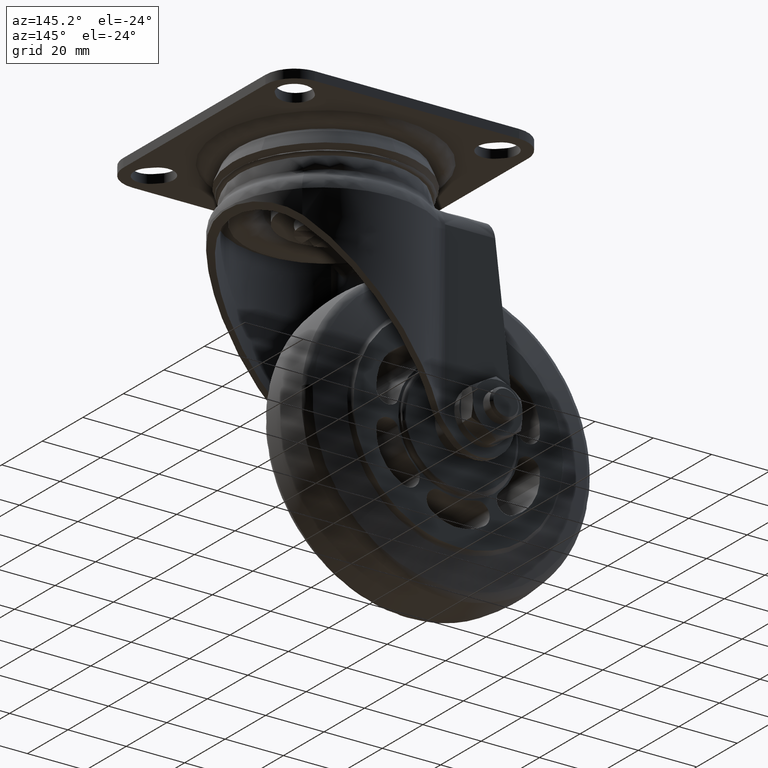
[diagram: clean part render]
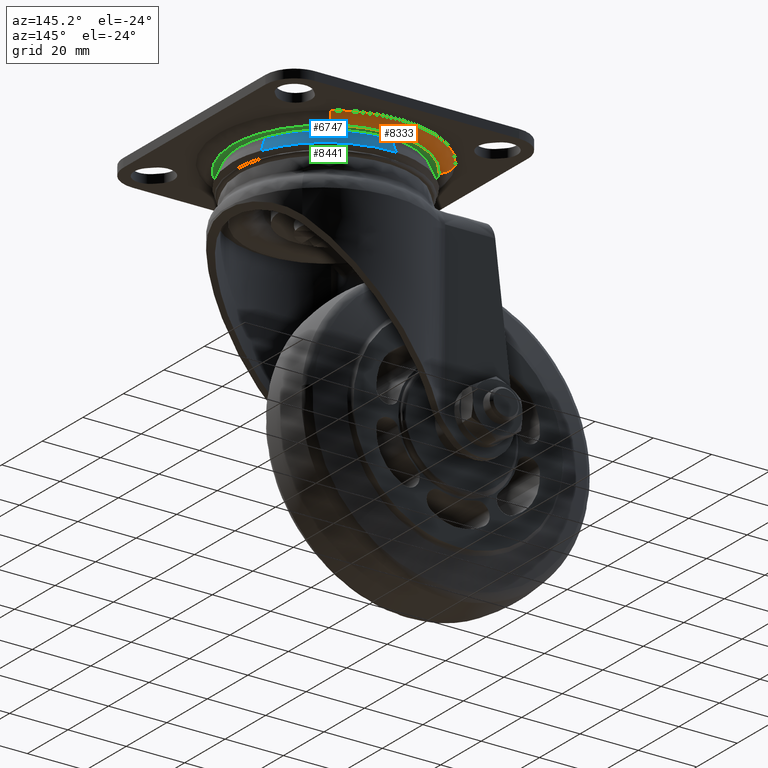
[diagram: same view with three faces highlighted in distinct colors, each labeled with its STEP entity id]
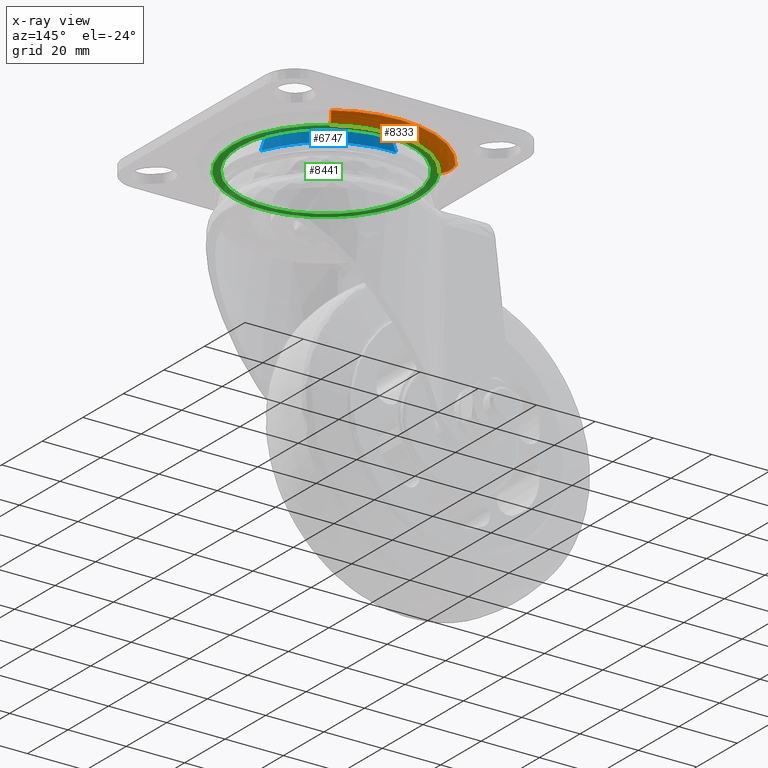
[diagram: x-ray of the same camera — body ghosted, the three highlighted faces saturated]
A machine part, auxiliary view with three faces highlighted in distinct colors.
The next image is the same camera in x-ray (body ghosted, the three faces saturated) — at least one of them is partly hidden behind the body in this view.
Their STEP definitions:

[orange] entity #8333 — the highlighted face is a freeform B-spline surface patch.
#8155=CARTESIAN_POINT('',(52.139406351390051,27.007382879294969,76.500008000000179));
#8156=VERTEX_POINT('',#8155);
#8172=CARTESIAN_POINT('',(54.613267598867779,30.905564445855742,79.000007999700046));
#8173=VERTEX_POINT('',#8172);
#8174=CARTESIAN_POINT('',(54.613267598867779,30.905564445855738,79.000007999700046));
#8175=CARTESIAN_POINT('',(53.739016646092765,29.527965377997617,76.500008938740550));
#8176=CARTESIAN_POINT('',(52.139406351390051,27.007382879294966,76.500008000000179));
#8184=(BOUNDED_CURVE()B_SPLINE_CURVE(2,(#8174,#8175,#8176),.UNSPECIFIED.,.F.,.U.)B_SPLINE_CURVE_WITH_KNOTS((3,3),(-1.628246052845319,-0.371524909680255),.UNSPECIFIED.)CURVE()GEOMETRIC_REPRESENTATION_ITEM()RATIONAL_B_SPLINE_CURVE((0.915350561856212,0.804938340400286,0.915390814455068))REPRESENTATION_ITEM(''));
#8185=EDGE_CURVE('',#8173,#8156,#8184,.T.);
#8219=CARTESIAN_POINT('',(4.094435554144263,19.613267598867779,79.000007999700046));
#8220=VERTEX_POINT('',#8219);
#8234=CARTESIAN_POINT('',(7.992617120705038,17.139406351390051,76.500008000000179));
#8235=VERTEX_POINT('',#8234);
#8236=CARTESIAN_POINT('',(4.094435554144264,19.613267598867779,79.000007999700046));
#8237=CARTESIAN_POINT('',(5.472034622002390,18.739016646092768,76.500008938740564));
#8238=CARTESIAN_POINT('',(7.992617120705038,17.139406351390054,76.500008000000179));
#8246=(BOUNDED_CURVE()B_SPLINE_CURVE(2,(#8236,#8237,#8238),.UNSPECIFIED.,.F.,.U.)B_SPLINE_CURVE_WITH_KNOTS((3,3),(-1.628246052845318,-0.371524909680255),.UNSPECIFIED.)CURVE()GEOMETRIC_REPRESENTATION_ITEM()RATIONAL_B_SPLINE_CURVE((0.915350561856211,0.804938340400286,0.915390814455068))REPRESENTATION_ITEM(''));
#8247=EDGE_CURVE('',#8220,#8235,#8246,.T.);
#8282=CARTESIAN_POINT('',(3.978561410866686,19.686803566244709,79.221561273931243));
#8283=CARTESIAN_POINT('',(23.665364977111405,50.708242155378038,79.221561273931272));
#8284=CARTESIAN_POINT('',(54.686803566244699,31.021438589133307,79.221561273931243));
#8285=CARTESIAN_POINT('',(5.402866759419326,18.782911906457862,76.348735170714249));
#8286=CARTESIAN_POINT('',(24.185778665877184,48.380045147038537,76.348735170714249));
#8287=CARTESIAN_POINT('',(53.782911906457869,29.597133240580671,76.348735170714249));
#8288=CARTESIAN_POINT('',(8.212590529111070,16.999806981442990,76.506167195060769));
#8289=CARTESIAN_POINT('',(25.212397510554055,43.787216452331919,76.506167195060769));
#8290=CARTESIAN_POINT('',(51.999806981442987,26.787409470888939,76.506167195060769));
#8298=(BOUNDED_SURFACE()B_SPLINE_SURFACE(2,2,((#8282,#8285,#8288),(#8283,#8286,#8289),(#8284,#8287,#8290)),.UNSPECIFIED.,.F.,.F.,.U.)B_SPLINE_SURFACE_WITH_KNOTS((3,3),(3,3),(0.0,60.874455053956112),(0.0,6.145526125464318),.UNSPECIFIED.)GEOMETRIC_REPRESENTATION_ITEM()RATIONAL_B_SPLINE_SURFACE(((0.926931779916986,0.793355100846147,0.926976075509785),(0.655439747276617,0.560986771697248,0.655471068990662),(0.926931779916986,0.793355100846147,0.926976075509785)))REPRESENTATION_ITEM('')SURFACE());
#8299=CARTESIAN_POINT('',(7.992617120705038,17.139406351390047,76.500008000000179));
#8300=CARTESIAN_POINT('',(17.415085498655806,31.986840732012052,76.500008000000179));
#8301=CARTESIAN_POINT('',(35.0,31.986840732012048,76.500008000000193));
#8302=CARTESIAN_POINT('',(44.293036294679744,31.986840732012059,76.500008000000207));
#8303=CARTESIAN_POINT('',(52.139406351390043,27.007382879294973,76.500008000000179));
#8311=(BOUNDED_CURVE()B_SPLINE_CURVE(2,(#8299,#8300,#8301,#8302,#8303),.UNSPECIFIED.,.F.,.U.)B_SPLINE_CURVE_WITH_KNOTS((3,2,3),(0.091683542668600,0.250000000000000,0.341683542668600),.UNSPECIFIED.)CURVE()GEOMETRIC_REPRESENTATION_ITEM()RATIONAL_B_SPLINE_CURVE((0.863956829594023,0.814520732884255,1.0,0.892586048302293,0.863956829594023))REPRESENTATION_ITEM(''));
#8312=EDGE_CURVE('',#8235,#8156,#8311,.T.);
#8313=ORIENTED_EDGE('',*,*,#8312,.F.);
#8314=ORIENTED_EDGE('',*,*,#8247,.F.);
#8315=CARTESIAN_POINT('',(4.094435554144263,19.613267598867775,79.000007999700046));
#8316=CARTESIAN_POINT('',(14.876920661224446,36.603745431800689,79.000007999999980));
#8317=CARTESIAN_POINT('',(35.0,36.603745431800697,79.000007999999994));
#8318=CARTESIAN_POINT('',(45.634371104946915,36.603745431800697,79.000007999999980));
#8319=CARTESIAN_POINT('',(54.613267598867786,30.905564445855742,79.000007999700046));
#8327=(BOUNDED_CURVE()B_SPLINE_CURVE(2,(#8315,#8316,#8317,#8318,#8319),.UNSPECIFIED.,.F.,.U.)B_SPLINE_CURVE_WITH_KNOTS((3,2,3),(0.091683542668625,0.250000000000000,0.341683542668626),.UNSPECIFIED.)CURVE()GEOMETRIC_REPRESENTATION_ITEM()RATIONAL_B_SPLINE_CURVE((0.863956829594007,0.814520732884285,1.0,0.892586048302263,0.863956829594007))REPRESENTATION_ITEM(''));
#8328=EDGE_CURVE('',#8220,#8173,#8327,.T.);
#8329=ORIENTED_EDGE('',*,*,#8328,.T.);
#8330=ORIENTED_EDGE('',*,*,#8185,.T.);
#8331=EDGE_LOOP('',(#8313,#8314,#8329,#8330));
#8332=FACE_OUTER_BOUND('',#8331,.T.);
#8333=ADVANCED_FACE('',(#8332),#8298,.T.);

[blue] entity #6747 — the highlighted face is a freeform B-spline surface patch.
#6496=CARTESIAN_POINT('',(33.046446551698352,31.940316543904981,71.154708999992380));
#6497=VERTEX_POINT('',#6496);
#6511=CARTESIAN_POINT('',(64.956597329280214,11.251776235396729,71.154708999997638));
#6512=VERTEX_POINT('',#6511);
#6513=CARTESIAN_POINT('',(33.046446551698345,31.940316543904981,71.154708999992380));
#6514=CARTESIAN_POINT('',(34.022311482746325,32.000003000000099,71.154708999999897));
#6515=CARTESIAN_POINT('',(35.0,32.000003000000099,71.154708999999897));
#6516=CARTESIAN_POINT('',(57.163509140031060,32.000003000000099,71.154708999999897));
#6517=CARTESIAN_POINT('',(64.956597329280214,11.251776235396726,71.154708999997638));
#6525=(BOUNDED_CURVE()B_SPLINE_CURVE(2,(#6513,#6514,#6515,#6516,#6517),.UNSPECIFIED.,.F.,.U.)B_SPLINE_CURVE_WITH_KNOTS((3,2,3),(0.239332962241532,0.250000000000000,0.440284170898781),.UNSPECIFIED.)CURVE()GEOMETRIC_REPRESENTATION_ITEM()RATIONAL_B_SPLINE_CURVE((0.976072041672266,0.987502787902870,1.0,0.777068226784828,0.893499554635609))REPRESENTATION_ITEM(''));
#6526=EDGE_CURVE('',#6497,#6512,#6525,.T.);
#6617=CARTESIAN_POINT('',(63.131875805469747,10.566406062988850,75.676998149874834));
#6618=VERTEX_POINT('',#6617);
#6619=CARTESIAN_POINT('',(63.131875805469747,10.566406062988850,75.676998149874834));
#6620=CARTESIAN_POINT('',(64.956597329280214,11.251776235396729,71.154708999997638));
#6621=QUASI_UNIFORM_CURVE('',1,(#6619,#6620),.UNSPECIFIED.,.F.,.U.);
#6622=EDGE_CURVE('',#6618,#6512,#6621,.T.);
#6686=CARTESIAN_POINT('',(33.165441742729833,29.994762366510638,75.676998149858619));
#6687=VERTEX_POINT('',#6686);
#6701=CARTESIAN_POINT('',(33.165441742729833,29.994762366510638,75.676998149858619));
#6702=CARTESIAN_POINT('',(33.046446551698352,31.940316543904981,71.154708999992380));
#6703=QUASI_UNIFORM_CURVE('',1,(#6701,#6702),.UNSPECIFIED.,.F.,.U.);
#6704=EDGE_CURVE('',#6687,#6497,#6703,.T.);
#6713=CARTESIAN_POINT('',(33.168416622653780,29.946123512037399,75.790055378715138));
#6714=CARTESIAN_POINT('',(55.292496633204209,31.299290213901603,75.790055378715138));
#6715=CARTESIAN_POINT('',(63.086257767358020,10.549271808607976,75.790055378715124));
#6716=CARTESIAN_POINT('',(33.043397299966102,31.990171369700882,71.038825340532000));
#6717=CARTESIAN_POINT('',(56.677611947146971,33.435701862721409,71.038825340532000));
#6718=CARTESIAN_POINT('',(65.003355818331983,11.269338846053653,71.038825340532000));
#6726=(BOUNDED_SURFACE()B_SPLINE_SURFACE(2,1,((#6713,#6716),(#6714,#6717),(#6715,#6718)),.UNSPECIFIED.,.F.,.F.,.U.)B_SPLINE_SURFACE_WITH_KNOTS((3,3),(2,2),(0.0,42.192117079920088),(0.0,5.173775058040088),.UNSPECIFIED.)GEOMETRIC_REPRESENTATION_ITEM()RATIONAL_B_SPLINE_SURFACE(((1.0,1.0),(0.765685424949238,0.765685424949238),(0.906274169979695,0.906274169979695)))REPRESENTATION_ITEM('')SURFACE());
#6727=ORIENTED_EDGE('',*,*,#6526,.F.);
#6728=ORIENTED_EDGE('',*,*,#6704,.F.);
#6729=CARTESIAN_POINT('',(33.165441742729833,29.994762366510635,75.676998149858619));
#6730=CARTESIAN_POINT('',(34.081864617511442,30.050813190695450,75.676998149885094));
#6731=CARTESIAN_POINT('',(35.0,30.050813190695450,75.676998149885094));
#6732=CARTESIAN_POINT('',(55.813481574208446,30.050813190695457,75.676998149885108));
#6733=CARTESIAN_POINT('',(63.131875805469747,10.566406062988854,75.676998149874834));
#6741=(BOUNDED_CURVE()B_SPLINE_CURVE(2,(#6729,#6730,#6731,#6732,#6733),.UNSPECIFIED.,.F.,.U.)B_SPLINE_CURVE_WITH_KNOTS((3,2,3),(0.239332962240326,0.250000000000000,0.440284170898286),.UNSPECIFIED.)CURVE()GEOMETRIC_REPRESENTATION_ITEM()RATIONAL_B_SPLINE_CURVE((0.976072041669683,0.987502787901458,1.0,0.777068226785407,0.893499554635004))REPRESENTATION_ITEM(''));
#6742=EDGE_CURVE('',#6687,#6618,#6741,.T.);
#6743=ORIENTED_EDGE('',*,*,#6742,.T.);
#6744=ORIENTED_EDGE('',*,*,#6622,.T.);
#6745=EDGE_LOOP('',(#6727,#6728,#6743,#6744));
#6746=FACE_OUTER_BOUND('',#6745,.T.);
#6747=ADVANCED_FACE('',(#6746),#6726,.T.);

[green] entity #8441 — the highlighted face is a freeform B-spline surface patch.
#8006=CARTESIAN_POINT('',(20.266181873852361,-25.683714975941381,76.500007997211426));
#8007=VERTEX_POINT('',#8006);
#8021=CARTESIAN_POINT('',(5.390227771353555,0.0,76.500007999999994));
#8022=VERTEX_POINT('',#8021);
#8023=CARTESIAN_POINT('',(20.266181873852364,-25.683714975941381,76.500007997211426));
#8024=CARTESIAN_POINT('',(5.390227771353555,-17.149918270080693,76.500007999999994));
#8025=CARTESIAN_POINT('',(5.390227771353555,0.0,76.500007999999994));
#8033=(BOUNDED_CURVE()B_SPLINE_CURVE(2,(#8023,#8024,#8025),.UNSPECIFIED.,.F.,.U.)B_SPLINE_CURVE_WITH_KNOTS((3,3),(0.834845177042960,1.0),.UNSPECIFIED.)CURVE()GEOMETRIC_REPRESENTATION_ITEM()RATIONAL_B_SPLINE_CURVE((0.868665835339962,0.806509089206187,1.0))REPRESENTATION_ITEM(''));
#8034=EDGE_CURVE('',#8007,#8022,#8033,.T.);
#8036=CARTESIAN_POINT('',(64.609772228646449,0.0,76.500007999999994));
#8037=VERTEX_POINT('',#8036);
#8038=CARTESIAN_POINT('',(5.390227771353555,0.0,76.500007999999994));
#8039=CARTESIAN_POINT('',(5.390227771353556,29.609772228646442,76.500007999999980));
#8040=CARTESIAN_POINT('',(35.0,29.609772228646449,76.500007999999994));
#8041=CARTESIAN_POINT('',(64.609772228646449,29.609772228646442,76.500007999999980));
#8042=CARTESIAN_POINT('',(64.609772228646449,0.0,76.500007999999994));
#8050=(BOUNDED_CURVE()B_SPLINE_CURVE(2,(#8038,#8039,#8040,#8041,#8042),.UNSPECIFIED.,.F.,.U.)B_SPLINE_CURVE_WITH_KNOTS((3,2,3),(0.0,0.250000000000000,0.500000000000000),.UNSPECIFIED.)CURVE()GEOMETRIC_REPRESENTATION_ITEM()RATIONAL_B_SPLINE_CURVE((1.0,0.707106781186547,1.0,0.707106781186547,1.0))REPRESENTATION_ITEM(''));
#8051=EDGE_CURVE('',#8022,#8037,#8050,.T.);
#8053=CARTESIAN_POINT('',(59.799014502250159,-16.178612154844568,76.500007997213871));
#8054=VERTEX_POINT('',#8053);
#8055=CARTESIAN_POINT('',(64.609772228646449,0.0,76.500007999999994));
#8056=CARTESIAN_POINT('',(64.609772228646449,-8.804552529999645,76.500007999999980));
#8057=CARTESIAN_POINT('',(59.799014502250152,-16.178612154844565,76.500007997213871));
#8065=(BOUNDED_CURVE()B_SPLINE_CURVE(2,(#8055,#8056,#8057),.UNSPECIFIED.,.F.,.U.)B_SPLINE_CURVE_WITH_KNOTS((3,3),(0.500000000000000,0.593601467029665),.UNSPECIFIED.)CURVE()GEOMETRIC_REPRESENTATION_ITEM()RATIONAL_B_SPLINE_CURVE((1.0,0.890339060144081,0.862793519059089))REPRESENTATION_ITEM(''));
#8066=EDGE_CURVE('',#8037,#8054,#8065,.T.);
#8107=CARTESIAN_POINT('',(59.799014502250174,-16.178612154844568,76.500007997213885));
#8108=CARTESIAN_POINT('',(51.036669141378667,-29.609772228646456,76.500007999999994));
#8109=CARTESIAN_POINT('',(35.0,-29.609772228646449,76.500007999999994));
#8110=CARTESIAN_POINT('',(27.110011127525102,-29.609772228646449,76.500008000000008));
#8111=CARTESIAN_POINT('',(20.266181873852357,-25.683714975941381,76.500007997211426));
#8119=(BOUNDED_CURVE()B_SPLINE_CURVE(2,(#8107,#8108,#8109,#8110,#8111),.UNSPECIFIED.,.F.,.U.)B_SPLINE_CURVE_WITH_KNOTS((3,2,3),(0.593601467029665,0.750000000000000,0.834845177042960),.UNSPECIFIED.)CURVE()GEOMETRIC_REPRESENTATION_ITEM()RATIONAL_B_SPLINE_CURVE((0.862793519059089,0.816767721042467,1.0,0.900597691980361,0.868665835339963))REPRESENTATION_ITEM(''));
#8120=EDGE_CURVE('',#8054,#8007,#8119,.T.);
#8155=CARTESIAN_POINT('',(52.139406351390051,27.007382879294969,76.500008000000179));
#8156=VERTEX_POINT('',#8155);
#8157=CARTESIAN_POINT('',(66.986840732012055,0.0,76.500008000000193));
#8158=VERTEX_POINT('',#8157);
#8159=CARTESIAN_POINT('',(52.139406351390051,27.007382879294969,76.500008000000179));
#8160=CARTESIAN_POINT('',(66.986840732012084,17.584914501344198,76.500008000000193));
#8161=CARTESIAN_POINT('',(66.986840732012055,0.0,76.500008000000193));
#8169=(BOUNDED_CURVE()B_SPLINE_CURVE(2,(#8159,#8160,#8161),.UNSPECIFIED.,.F.,.U.)B_SPLINE_CURVE_WITH_KNOTS((3,3),(0.341683542668600,0.500000000000000),.UNSPECIFIED.)CURVE()GEOMETRIC_REPRESENTATION_ITEM()RATIONAL_B_SPLINE_CURVE((0.863956829594023,0.814520732884255,1.0))REPRESENTATION_ITEM(''));
#8170=EDGE_CURVE('',#8156,#8158,#8169,.T.);
#8234=CARTESIAN_POINT('',(7.992617120705038,17.139406351390051,76.500008000000179));
#8235=VERTEX_POINT('',#8234);
#8249=CARTESIAN_POINT('',(3.013159267987953,0.0,76.500008000000193));
#8250=VERTEX_POINT('',#8249);
#8251=CARTESIAN_POINT('',(3.013159267987953,0.0,76.500008000000193));
#8252=CARTESIAN_POINT('',(3.013159267987952,9.293036294679727,76.500008000000193));
#8253=CARTESIAN_POINT('',(7.992617120705038,17.139406351390047,76.500008000000179));
#8261=(BOUNDED_CURVE()B_SPLINE_CURVE(2,(#8251,#8252,#8253),.UNSPECIFIED.,.F.,.U.)B_SPLINE_CURVE_WITH_KNOTS((3,3),(0.0,0.091683542668600),.UNSPECIFIED.)CURVE()GEOMETRIC_REPRESENTATION_ITEM()RATIONAL_B_SPLINE_CURVE((1.0,0.892586048302293,0.863956829594023))REPRESENTATION_ITEM(''));
#8262=EDGE_CURVE('',#8250,#8235,#8261,.T.);
#8264=CARTESIAN_POINT('',(66.986840732012055,0.0,76.500008000000193));
#8265=CARTESIAN_POINT('',(66.986840732012070,-31.986840732012055,76.500008000000207));
#8266=CARTESIAN_POINT('',(35.0,-31.986840732012048,76.500008000000193));
#8267=CARTESIAN_POINT('',(3.013159267987951,-31.986840732012055,76.500008000000207));
#8268=CARTESIAN_POINT('',(3.013159267987953,0.0,76.500008000000193));
#8276=(BOUNDED_CURVE()B_SPLINE_CURVE(2,(#8264,#8265,#8266,#8267,#8268),.UNSPECIFIED.,.F.,.U.)B_SPLINE_CURVE_WITH_KNOTS((3,2,3),(0.500000000000000,0.750000000000000,1.0),.UNSPECIFIED.)CURVE()GEOMETRIC_REPRESENTATION_ITEM()RATIONAL_B_SPLINE_CURVE((1.0,0.707106781186547,1.0,0.707106781186547,1.0))REPRESENTATION_ITEM(''));
#8277=EDGE_CURVE('',#8158,#8250,#8276,.T.);
#8299=CARTESIAN_POINT('',(7.992617120705038,17.139406351390047,76.500008000000179));
#8300=CARTESIAN_POINT('',(17.415085498655806,31.986840732012052,76.500008000000179));
#8301=CARTESIAN_POINT('',(35.0,31.986840732012048,76.500008000000193));
#8302=CARTESIAN_POINT('',(44.293036294679744,31.986840732012059,76.500008000000207));
#8303=CARTESIAN_POINT('',(52.139406351390043,27.007382879294973,76.500008000000179));
#8311=(BOUNDED_CURVE()B_SPLINE_CURVE(2,(#8299,#8300,#8301,#8302,#8303),.UNSPECIFIED.,.F.,.U.)B_SPLINE_CURVE_WITH_KNOTS((3,2,3),(0.091683542668600,0.250000000000000,0.341683542668600),.UNSPECIFIED.)CURVE()GEOMETRIC_REPRESENTATION_ITEM()RATIONAL_B_SPLINE_CURVE((0.863956829594023,0.814520732884255,1.0,0.892586048302293,0.863956829594023))REPRESENTATION_ITEM(''));
#8312=EDGE_CURVE('',#8235,#8156,#8311,.T.);
#8424=CARTESIAN_POINT('',(-0.182325768587717,-35.182238962062193,76.500008000000093));
#8425=CARTESIAN_POINT('',(70.182322908741313,-35.182238962062193,76.500008000000093));
#8426=CARTESIAN_POINT('',(-0.182325768587717,35.180485639580823,76.500008000000093));
#8427=CARTESIAN_POINT('',(70.182322908741313,35.180485639580823,76.500008000000093));
#8428=B_SPLINE_SURFACE_WITH_KNOTS('',1,1,((#8424,#8426),(#8425,#8427)),.UNSPECIFIED.,.F.,.F.,.U.,(2,2),(2,2),(0.0,70.364648677329029),(0.0,70.362724601643009),.UNSPECIFIED.);
#8429=ORIENTED_EDGE('',*,*,#8170,.T.);
#8430=ORIENTED_EDGE('',*,*,#8277,.T.);
#8431=ORIENTED_EDGE('',*,*,#8262,.T.);
#8432=ORIENTED_EDGE('',*,*,#8312,.T.);
#8433=EDGE_LOOP('',(#8429,#8430,#8431,#8432));
#8434=FACE_OUTER_BOUND('',#8433,.T.);
#8435=ORIENTED_EDGE('',*,*,#8051,.F.);
#8436=ORIENTED_EDGE('',*,*,#8034,.F.);
#8437=ORIENTED_EDGE('',*,*,#8120,.F.);
#8438=ORIENTED_EDGE('',*,*,#8066,.F.);
#8439=EDGE_LOOP('',(#8435,#8436,#8437,#8438));
#8440=FACE_BOUND('',#8439,.T.);
#8441=ADVANCED_FACE('',(#8434,#8440),#8428,.F.);